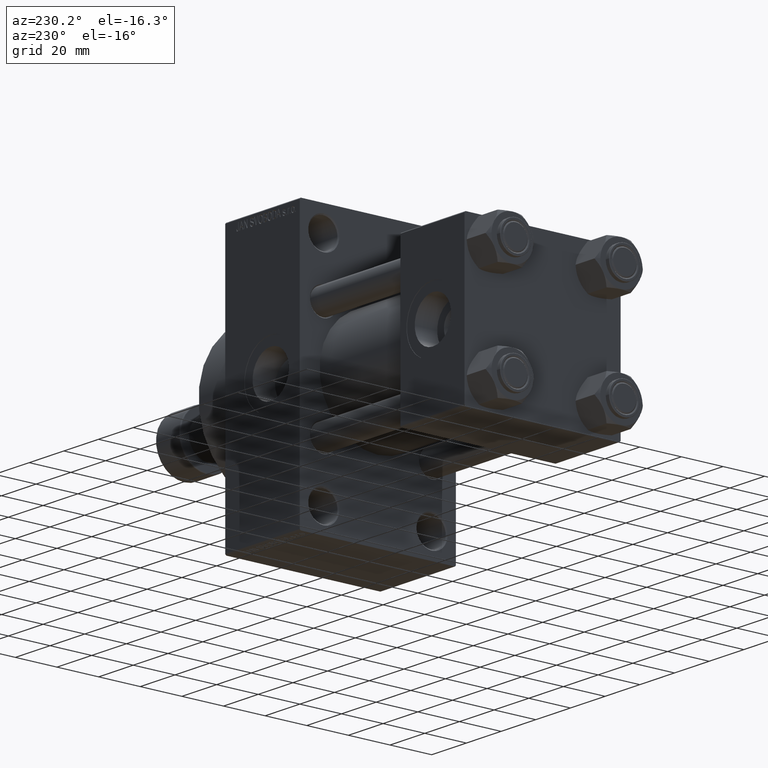
[diagram: clean part render]
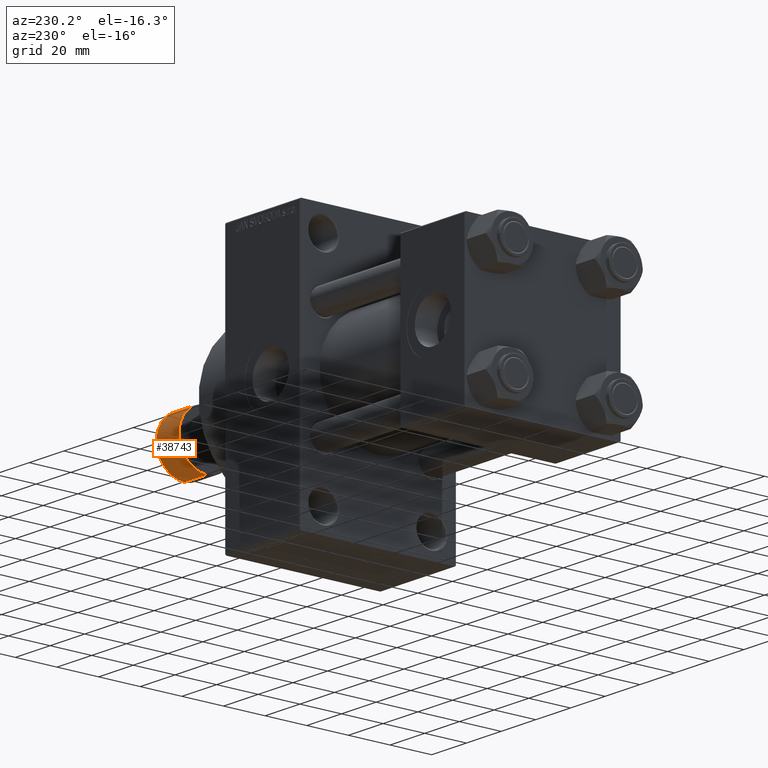
[diagram: same view with one face highlighted and labeled with its STEP entity id]
A machine part, auxiliary view. The second image highlights one B-rep face of the part: STEP entity #38743.
In plain terms, the highlighted cylindrical surface (partial cylindrical patch) has radius 13.5 mm, axis along (1, 0, 0).
Its self-contained STEP definition (entity closure, byte-faithful):
#1348 = CARTESIAN_POINT ( 'NONE',  ( -13.50000000000000000, 1.653273178848926867E-15, -13.50000000000000000 ) ) ;
#1714 = DIRECTION ( 'NONE',  ( 0.000000000000000000, 0.000000000000000000, 1.000000000000000000 ) ) ;
#2358 = CARTESIAN_POINT ( 'NONE',  ( -13.50000000000000000, 1.653273178848926867E-15, -14.00000000000000000 ) ) ;
#3242 = CIRCLE ( 'NONE', #11261, 13.50000000000000000 ) ;
#4298 = AXIS2_PLACEMENT_3D ( 'NONE', #46469, #20558, #31362 ) ;
#8994 = DIRECTION ( 'NONE',  ( 0.000000000000000000, 0.000000000000000000, 1.000000000000000000 ) ) ;
#9000 = CYLINDRICAL_SURFACE ( 'NONE', #40778, 13.50000000000000000 ) ;
#11261 = AXIS2_PLACEMENT_3D ( 'NONE', #15117, #37509, #11574 ) ;
#11574 = DIRECTION ( 'NONE',  ( 1.000000000000000000, 0.000000000000000000, 0.000000000000000000 ) ) ;
#13129 = CARTESIAN_POINT ( 'NONE',  ( -13.50000000000000000, 1.653273178848926867E-15, -0.5000000000000004441 ) ) ;
#13376 = EDGE_CURVE ( 'NONE', #28112, #24122, #25471, .T. ) ;
#13686 = CIRCLE ( 'NONE', #4298, 13.50000000000000000 ) ;
#13950 = VERTEX_POINT ( 'NONE', #25358 ) ;
#15117 = CARTESIAN_POINT ( 'NONE',  ( 0.000000000000000000, 0.000000000000000000, -0.5000000000000004441 ) ) ;
#16798 = DIRECTION ( 'NONE',  ( 1.000000000000000000, 0.000000000000000000, 0.000000000000000000 ) ) ;
#20558 = DIRECTION ( 'NONE',  ( 0.000000000000000000, 0.000000000000000000, 1.000000000000000000 ) ) ;
#20565 = LINE ( 'NONE', #28100, #23955 ) ;
#23069 = ORIENTED_EDGE ( 'NONE', *, *, #36356, .T. ) ;
#23955 = VECTOR ( 'NONE', #8994, 1000.000000000000000 ) ;
#24122 = VERTEX_POINT ( 'NONE', #13129 ) ;
#24835 = FACE_OUTER_BOUND ( 'NONE', #29826, .T. ) ;
#25358 = CARTESIAN_POINT ( 'NONE',  ( 13.50000000000000000, 0.000000000000000000, -0.5000000000000004441 ) ) ;
#25471 = LINE ( 'NONE', #2358, #34805 ) ;
#26935 = EDGE_CURVE ( 'NONE', #38482, #13950, #20565, .T. ) ;
#28100 = CARTESIAN_POINT ( 'NONE',  ( 13.50000000000000000, 0.000000000000000000, -14.00000000000000000 ) ) ;
#28112 = VERTEX_POINT ( 'NONE', #1348 ) ;
#29826 = EDGE_LOOP ( 'NONE', ( #23069, #39128, #47418, #47116 ) ) ;
#31362 = DIRECTION ( 'NONE',  ( 1.000000000000000000, 0.000000000000000000, 0.000000000000000000 ) ) ;
#32661 = EDGE_CURVE ( 'NONE', #24122, #13950, #3242, .T. ) ;
#34805 = VECTOR ( 'NONE', #37298, 1000.000000000000000 ) ;
#36356 = EDGE_CURVE ( 'NONE', #38482, #28112, #13686, .T. ) ;
#37298 = DIRECTION ( 'NONE',  ( 0.000000000000000000, 0.000000000000000000, 1.000000000000000000 ) ) ;
#37331 = CARTESIAN_POINT ( 'NONE',  ( 0.000000000000000000, 0.000000000000000000, -14.00000000000000000 ) ) ;
#37509 = DIRECTION ( 'NONE',  ( -0.000000000000000000, -0.000000000000000000, -1.000000000000000000 ) ) ;
#38482 = VERTEX_POINT ( 'NONE', #47564 ) ;
#38743 = ADVANCED_FACE ( 'NONE', ( #24835 ), #9000, .T. ) ;
#39128 = ORIENTED_EDGE ( 'NONE', *, *, #13376, .T. ) ;
#40778 = AXIS2_PLACEMENT_3D ( 'NONE', #37331, #1714, #16798 ) ;
#46469 = CARTESIAN_POINT ( 'NONE',  ( 0.000000000000000000, 0.000000000000000000, -13.50000000000000000 ) ) ;
#47116 = ORIENTED_EDGE ( 'NONE', *, *, #26935, .F. ) ;
#47418 = ORIENTED_EDGE ( 'NONE', *, *, #32661, .T. ) ;
#47564 = CARTESIAN_POINT ( 'NONE',  ( 13.50000000000000000, 0.000000000000000000, -13.50000000000000000 ) ) ;